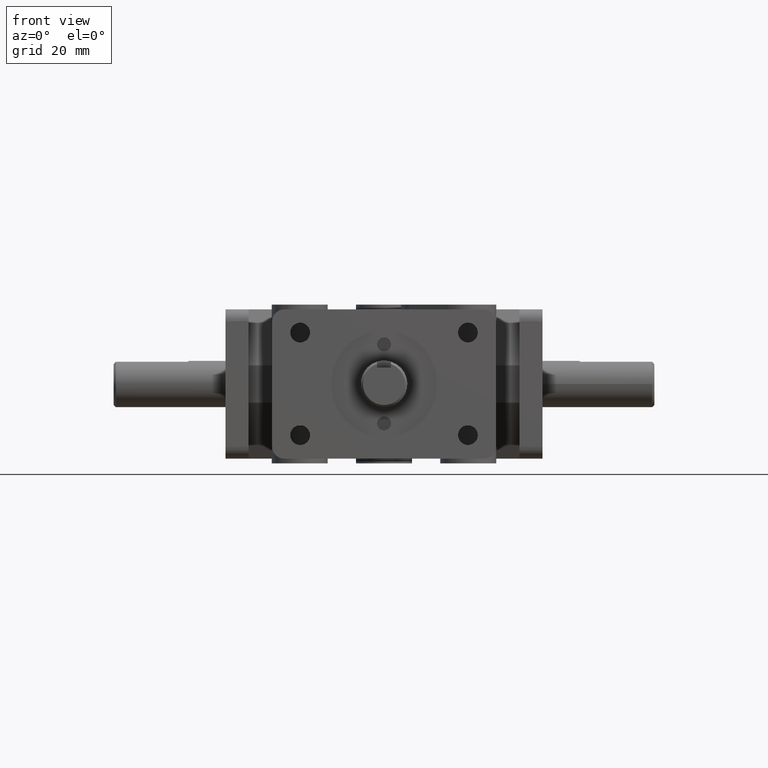
[diagram: clean part render]
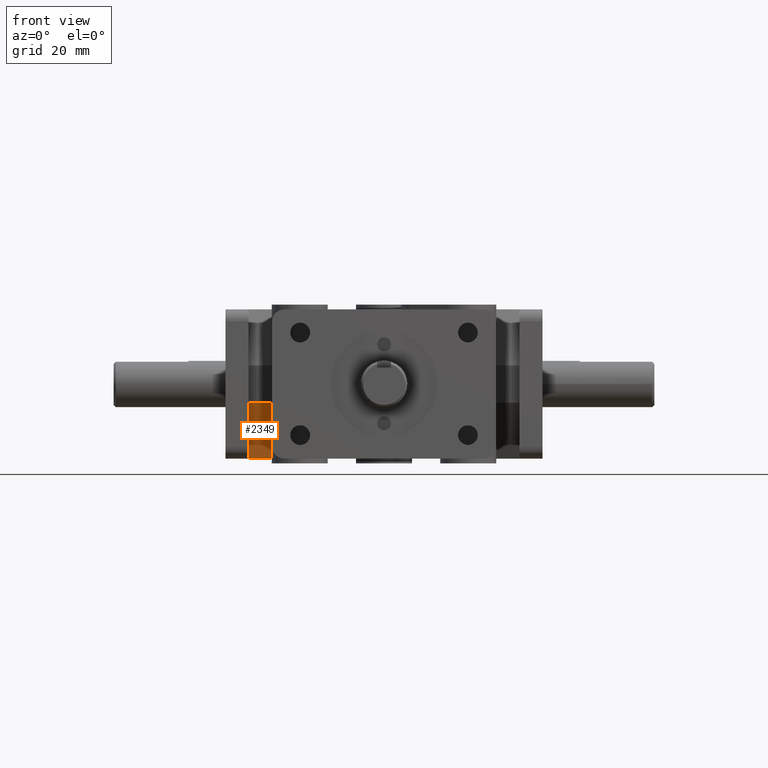
[diagram: same view with one face highlighted and labeled with its STEP entity id]
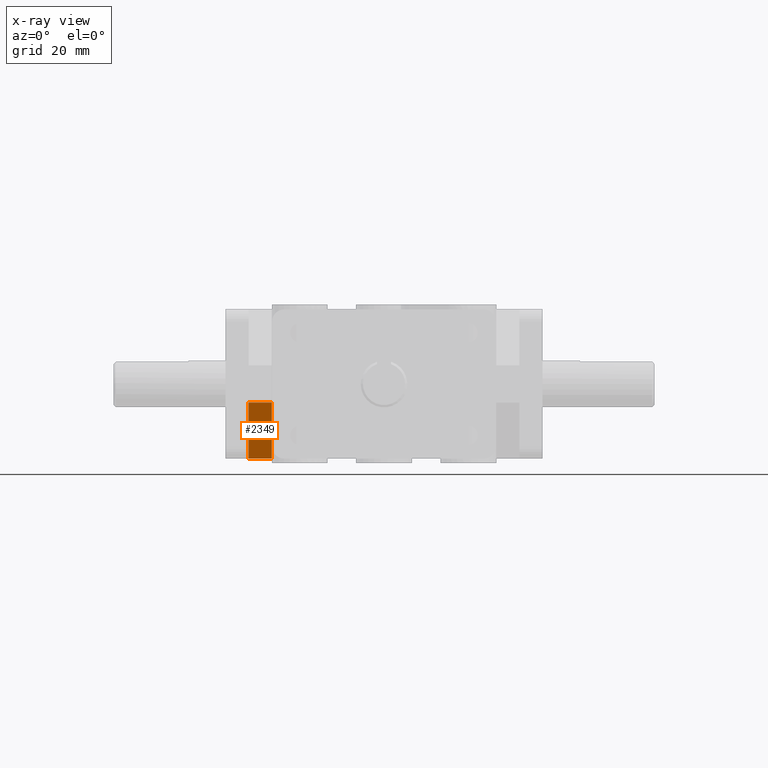
[diagram: x-ray of the same camera — body ghosted, the highlighted face saturated]
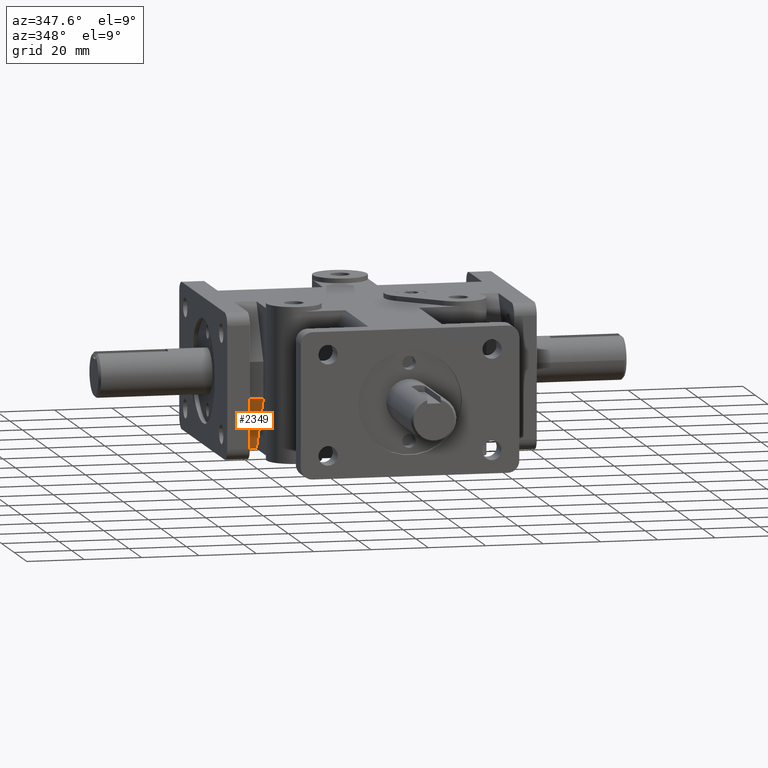
[diagram: same view with one face highlighted and labeled with its STEP entity id]
A machine part, front view. The second image highlights one B-rep face of the part: STEP entity #2349.
The next image is the same camera in x-ray: the body ghosted, the highlighted face saturated — about 0% of this face is hidden behind the body in this view.
A second angle (auxiliary view) of the same face is appended — the face is thin or edge-on in the first view.
In plain terms, the highlighted planar face has unit normal (0, -0.866, -0.5).
Its self-contained STEP definition (entity closure, byte-faithful):
#108=PLANE('',#2585);
#230=FACE_OUTER_BOUND('',#382,.T.);
#382=EDGE_LOOP('',(#1975,#1976,#1977,#1978));
#534=LINE('',#3644,#756);
#612=LINE('',#3885,#834);
#613=LINE('',#3887,#835);
#614=LINE('',#3888,#836);
#756=VECTOR('',#2931,1.);
#834=VECTOR('',#3157,1.);
#835=VECTOR('',#3158,1.);
#836=VECTOR('',#3159,1.);
#1120=VERTEX_POINT('',#3641);
#1121=VERTEX_POINT('',#3643);
#1192=VERTEX_POINT('',#3884);
#1193=VERTEX_POINT('',#3886);
#1368=EDGE_CURVE('',#1121,#1120,#534,.T.);
#1482=EDGE_CURVE('',#1192,#1121,#612,.F.);
#1483=EDGE_CURVE('',#1120,#1193,#613,.F.);
#1484=EDGE_CURVE('',#1193,#1192,#614,.T.);
#1975=ORIENTED_EDGE('',*,*,#1482,.T.);
#1976=ORIENTED_EDGE('',*,*,#1368,.T.);
#1977=ORIENTED_EDGE('',*,*,#1483,.T.);
#1978=ORIENTED_EDGE('',*,*,#1484,.T.);
#2349=ADVANCED_FACE('',(#230),#108,.T.);
#2585=AXIS2_PLACEMENT_3D('',#3883,#3155,#3156);
#2931=DIRECTION('',(1.,0.,0.));
#3155=DIRECTION('center_axis',(0.,-0.866025254730536,-0.500000258168844));
#3156=DIRECTION('ref_axis',(0.,-0.500000258168844,0.866025254730536));
#3157=DIRECTION('',(0.,-0.500000258168844,0.866025254730536));
#3158=DIRECTION('',(0.,0.500000258168844,-0.866025254730536));
#3159=DIRECTION('',(-1.,0.,0.));
#3641=CARTESIAN_POINT('',(-1.505,2.745513,-1.));
#3643=CARTESIAN_POINT('',(-1.815,2.745513,-1.));
#3644=CARTESIAN_POINT('',(-0.9075,2.745513,-1.));
#3883=CARTESIAN_POINT('Origin',(-0.9075,2.5290065,-0.625));
#3884=CARTESIAN_POINT('',(-1.815,2.3125,-0.25));
#3885=CARTESIAN_POINT('',(-1.815,2.29631407102174,-0.221965167942549));
#3886=CARTESIAN_POINT('',(-1.505,2.3125,-0.25));
#3887=CARTESIAN_POINT('',(-1.505,2.36662664363175,-0.343750032271114));
#3888=CARTESIAN_POINT('',(-0.9075,2.3125,-0.25));